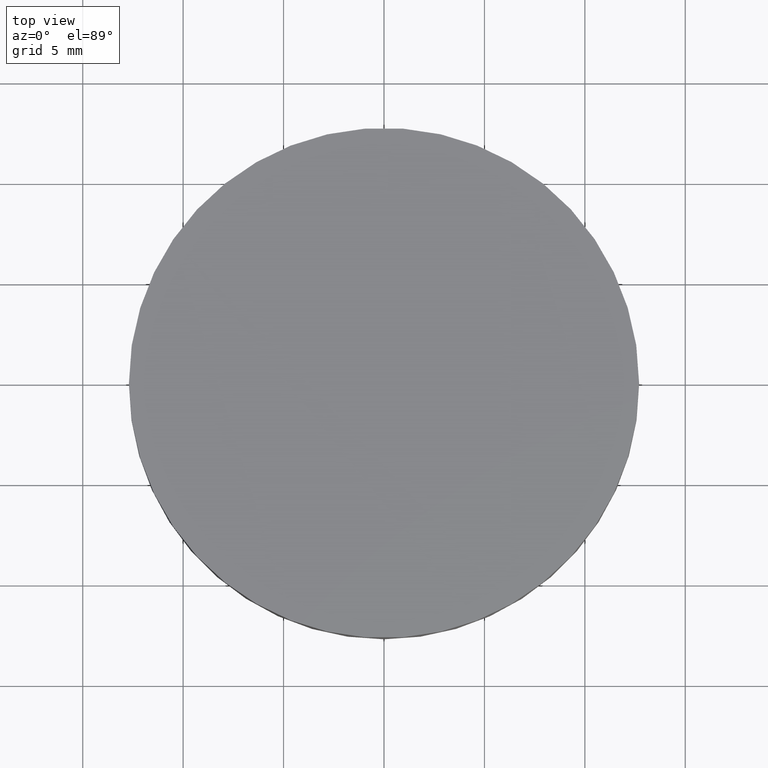
[diagram: clean part render]
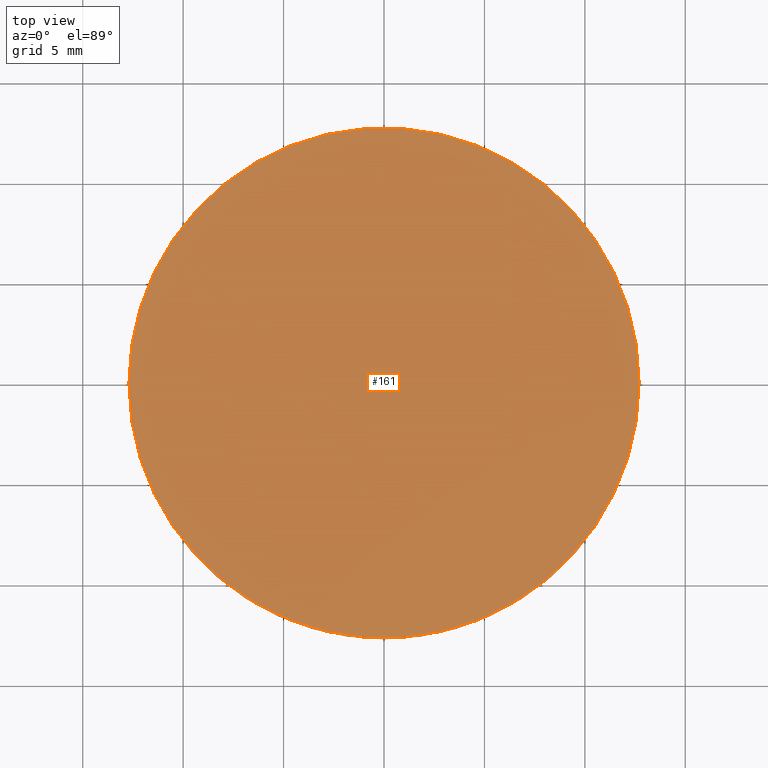
[diagram: same view with one face highlighted and labeled with its STEP entity id]
A machine part, top view. The second image highlights one B-rep face of the part: STEP entity #161.
In plain terms, the highlighted planar face has unit normal (0, 0, 1).
Its self-contained STEP definition (entity closure, byte-faithful):
#11 = EDGE_CURVE ( 'NONE', #311, #67, #441, .T. ) ;
#26 = CARTESIAN_POINT ( 'NONE',  ( 1.150626804807467557E-15, -8.881784197001250351E-16, 5.999999999999999112 ) ) ;
#67 = VERTEX_POINT ( 'NONE', #406 ) ;
#70 = CARTESIAN_POINT ( 'NONE',  ( 1.150626804807467557E-15, -8.881784197001250351E-16, 5.999999999999999112 ) ) ;
#134 = CARTESIAN_POINT ( 'NONE',  ( 12.70000000000000107, -8.881784197001250351E-16, 5.999999999999998224 ) ) ;
#139 = EDGE_CURVE ( 'NONE', #67, #311, #517, .T. ) ;
#161 = ADVANCED_FACE ( 'NONE', ( #531 ), #162, .T. ) ;
#162 = PLANE ( 'NONE',  #177 ) ;
#177 = AXIS2_PLACEMENT_3D ( 'NONE', #214, #378, #493 ) ;
#194 = DIRECTION ( 'NONE',  ( -6.993530863780509846E-17, -4.890947394265059749E-33, -1.000000000000000000 ) ) ;
#214 = CARTESIAN_POINT ( 'NONE',  ( 0.000000000000000000, 26.11199999999999832, 6.000000000000000000 ) ) ;
#235 = DIRECTION ( 'NONE',  ( -6.993530863780509846E-17, -4.890947394265059749E-33, -1.000000000000000000 ) ) ;
#311 = VERTEX_POINT ( 'NONE', #134 ) ;
#316 = EDGE_LOOP ( 'NONE', ( #365, #440 ) ) ;
#364 = DIRECTION ( 'NONE',  ( 1.000000000000000000, 0.000000000000000000, -6.829619984160658046E-17 ) ) ;
#365 = ORIENTED_EDGE ( 'NONE', *, *, #11, .F. ) ;
#378 = DIRECTION ( 'NONE',  ( 0.000000000000000000, 0.000000000000000000, 1.000000000000000000 ) ) ;
#406 = CARTESIAN_POINT ( 'NONE',  ( -12.69999999999999751, 6.671230152170134961E-16, 6.000000000000000000 ) ) ;
#411 = AXIS2_PLACEMENT_3D ( 'NONE', #26, #194, #364 ) ;
#440 = ORIENTED_EDGE ( 'NONE', *, *, #139, .F. ) ;
#441 = CIRCLE ( 'NONE', #488, 12.69999999999999929 ) ;
#482 = DIRECTION ( 'NONE',  ( 1.000000000000000000, 0.000000000000000000, -6.829619984160658046E-17 ) ) ;
#488 = AXIS2_PLACEMENT_3D ( 'NONE', #70, #235, #482 ) ;
#493 = DIRECTION ( 'NONE',  ( 1.000000000000000000, 0.000000000000000000, -0.000000000000000000 ) ) ;
#517 = CIRCLE ( 'NONE', #411, 12.69999999999999929 ) ;
#531 = FACE_OUTER_BOUND ( 'NONE', #316, .T. ) ;